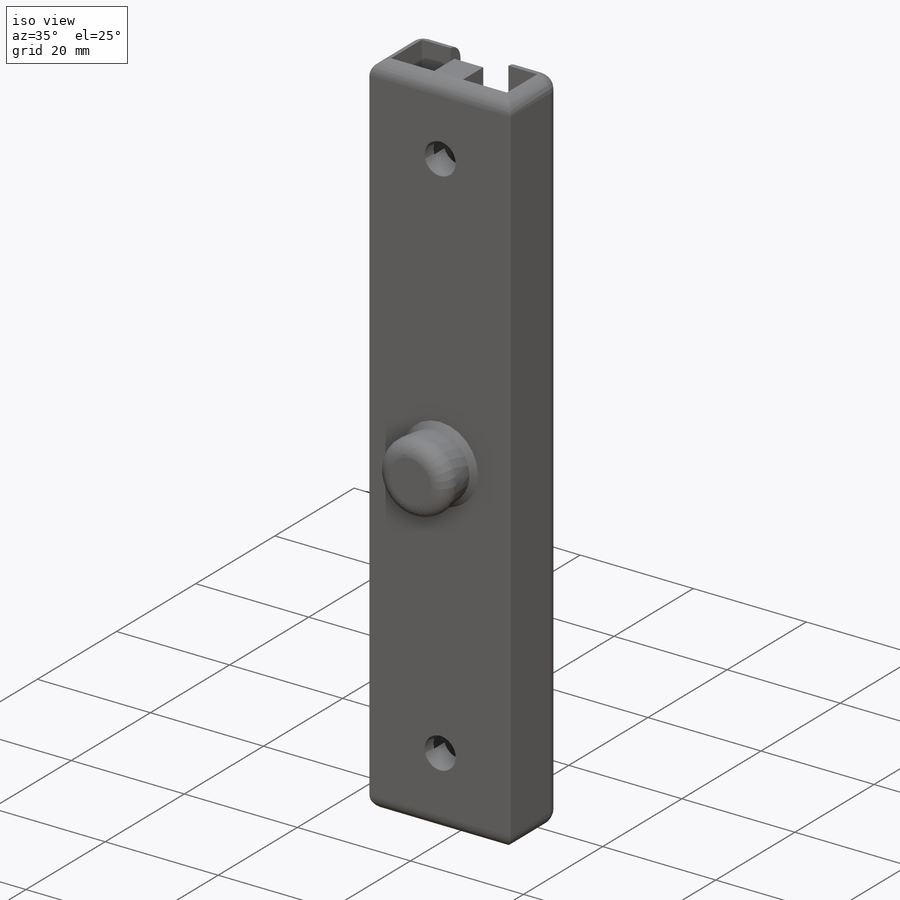
[diagram: iso view]
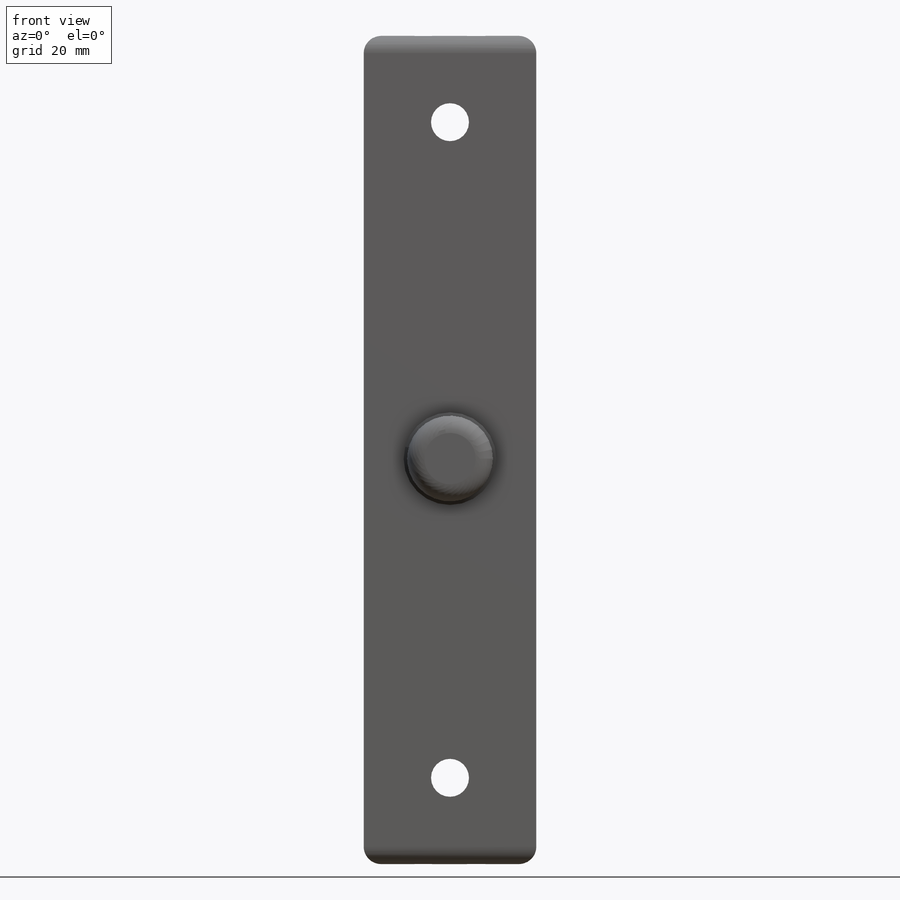
[diagram: front view]
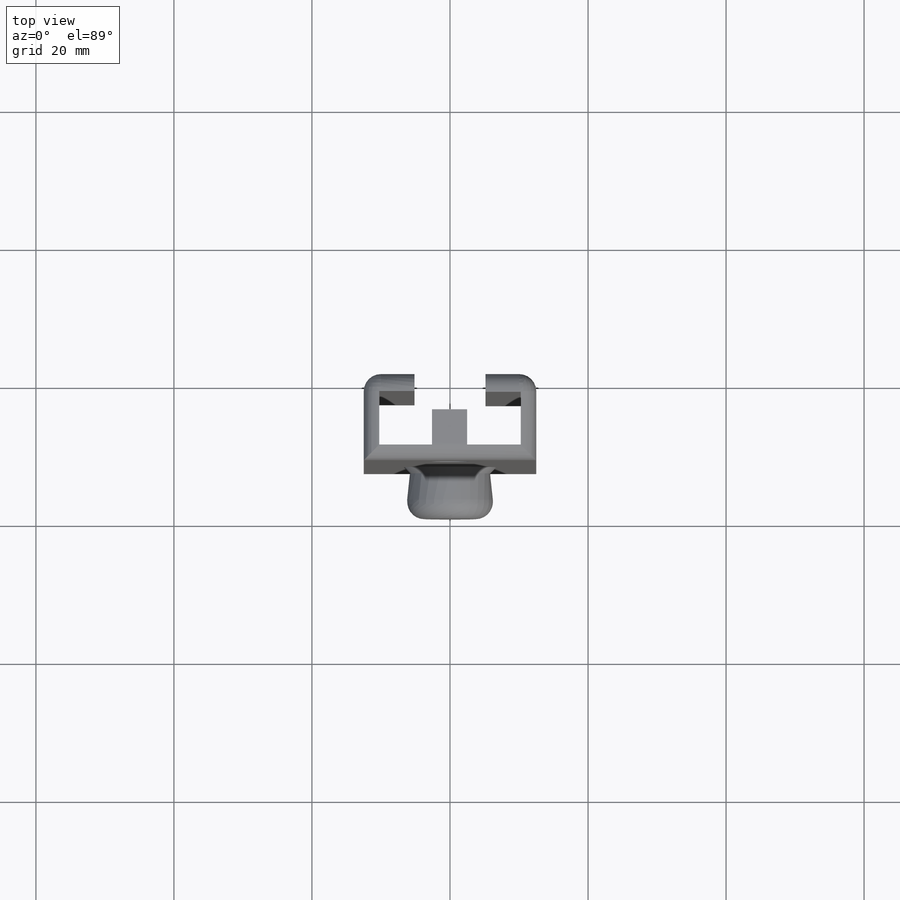
[diagram: top view]
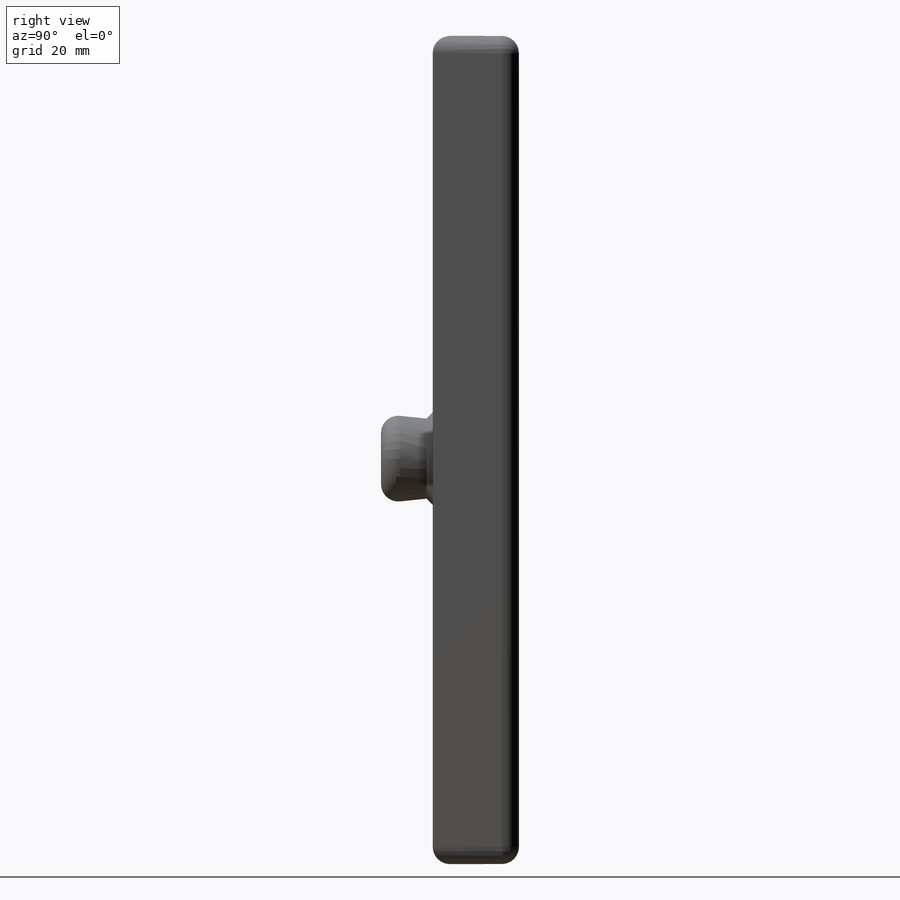
[diagram: right view]
SOLIDWORKS PART (.sldprt)
format: sldprt  version: not decoded by parser v0  size: 358,400 bytes
history: native  units: mm
features: sketch x7, cut_extrude x4, fillet x4, extrude x2, material x1, plane x1, chamfer x1 (+13 scaffold rows collapsed)
feature tree (33):
  scaffold x13  (default folders/planes/origin — collapsed)
  material  "Material <not specified>"
  sketch  "Sketch1"  dims[D1=25.0mm D2=25.0mm]
  extrude  "Boss-Extrude1"  Depth=120mm
  sketch  "Sketch2"  dims[D1=20.5mm D2=20.5mm D3=5.1mm D4=5.1mm D5=~7.761757mm D6=4.0]
  cut_extrude  "Cut-Extrude1"  Depth=120mm
  sketch  "Sketch3"
  cut_extrude  "Cut-Extrude2"  Depth=120mm
  fillet  "Fillet1"  Radius=2.5mm
  fillet  "Fillet2"  Radius=2.5mm
  fillet  "Fillet3"  Radius=2.5mm
  sketch  "Sketch6"  dims[D3=5.5mm D4=5.5mm D1=10.0mm D2=10.0mm]
  cut_extrude  "Cut-Extrude3"  Depth=10mm
  sketch  "Sketch7"  dims[D1=15.1mm D2=10.05mm D3=15.1mm D4=10.05mm]
  cut_extrude  "Cut-Extrude4"  Depth=2.5mm
  sketch  "Sketch8"  dims[D1=10.0mm]
  plane  "Tear Drop plane"  Offset=20mm
  sketch  "Sketch9"  dims[D1=13.0mm]
  extrude  "Boss-Extrude3"  Depth=7.5mm
  fillet  "Fillet4"  Radius=2.5mm
  chamfer  "Chamfer1"  Distance=1mm Angle=45deg
decode coverage: 17 of 18 modeling features carry decoded parameters
note: ~ marks probable driven/reference dimensions
note: suppression state not decoded; provenance and decode notes live in map.json
